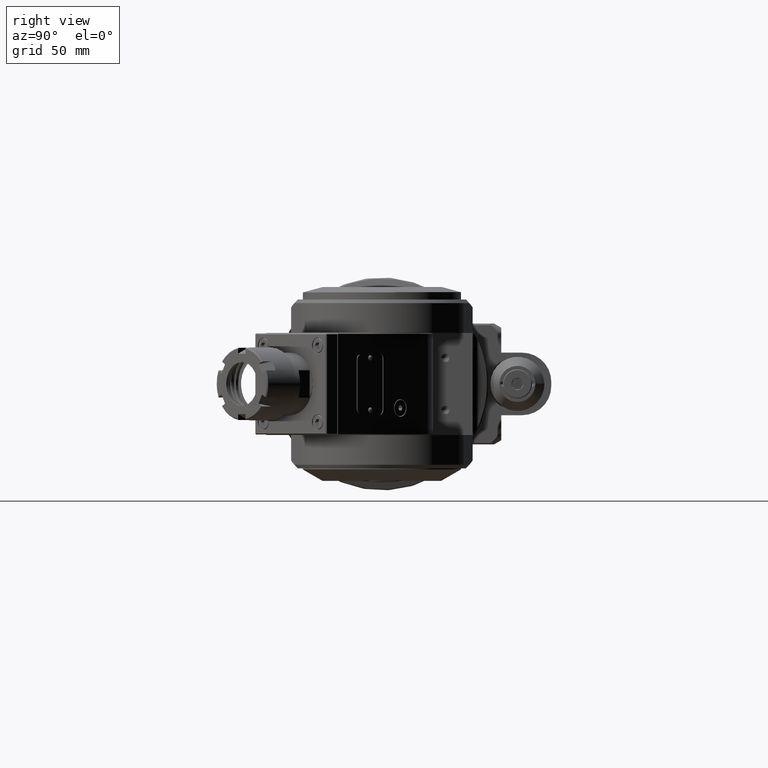
[diagram: clean part render]
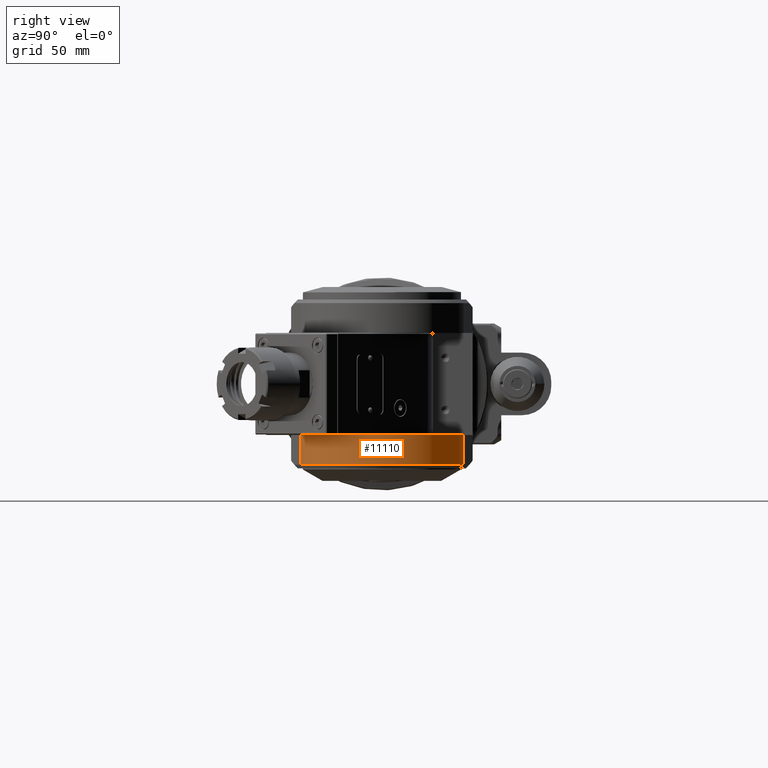
[diagram: same view with one face highlighted and labeled with its STEP entity id]
A machine part, right view. The second image highlights one B-rep face of the part: STEP entity #11110.
In plain terms, the highlighted cylindrical surface (partial cylindrical patch) has radius 40.5 mm, axis along (-0, -0, 1).
Its self-contained STEP definition (entity closure, byte-faithful):
#1300=FACE_OUTER_BOUND('',#2022,.T.);
#2022=EDGE_LOOP('',(#9365,#9366,#9367,#9368));
#2576=CIRCLE('',#12007,40.5);
#2643=CIRCLE('',#12159,40.5);
#3379=LINE('',#48899,#4193);
#3413=LINE('',#49160,#4227);
#4193=VECTOR('',#14398,14.26794919243);
#4227=VECTOR('',#14552,14.26794919243);
#5100=VERTEX_POINT('',#48416);
#5101=VERTEX_POINT('',#48418);
#5230=VERTEX_POINT('',#48896);
#5272=VERTEX_POINT('',#49156);
#6465=EDGE_CURVE('',#5100,#5101,#2576,.T.);
#6634=EDGE_CURVE('',#5100,#5230,#3379,.T.);
#6708=EDGE_CURVE('',#5272,#5230,#2643,.T.);
#6710=EDGE_CURVE('',#5272,#5101,#3413,.T.);
#9365=ORIENTED_EDGE('',*,*,#6708,.F.);
#9366=ORIENTED_EDGE('',*,*,#6710,.T.);
#9367=ORIENTED_EDGE('',*,*,#6465,.F.);
#9368=ORIENTED_EDGE('',*,*,#6634,.T.);
#10654=CYLINDRICAL_SURFACE('',#12160,40.5);
#11110=ADVANCED_FACE('',(#1300),#10654,.T.);
#12007=AXIS2_PLACEMENT_3D('',#48419,#14140,#14141);
#12159=AXIS2_PLACEMENT_3D('',#49157,#14547,#14548);
#12160=AXIS2_PLACEMENT_3D('',#49159,#14550,#14551);
#14140=DIRECTION('center_axis',(0.,1.,0.));
#14141=DIRECTION('ref_axis',(0.258819045102705,0.,0.965925826289019));
#14398=DIRECTION('',(-2.101556645925E-13,-1.,7.220988475335E-14));
#14547=DIRECTION('center_axis',(0.,-1.,0.));
#14548=DIRECTION('ref_axis',(0.258819045102493,0.,-0.965925826289076));
#14550=DIRECTION('center_axis',(0.,1.,0.));
#14551=DIRECTION('ref_axis',(0.,0.,-1.));
#14552=DIRECTION('',(1.902356963847E-13,1.,6.523789588062E-14));
#48416=CARTESIAN_POINT('',(117.4821713267,-24.5,39.1199959647));
#48418=CARTESIAN_POINT('',(117.4821713267,-24.5,-39.11999596471));
#48419=CARTESIAN_POINT('Origin',(107.,-24.5,0.));
#48896=CARTESIAN_POINT('',(117.4821713267,-38.76794919243,39.11999596471));
#48899=CARTESIAN_POINT('',(117.4821713267,-24.5,39.11999596471));
#49156=CARTESIAN_POINT('',(117.4821713267,-38.76794919243,-39.11999596471));
#49157=CARTESIAN_POINT('Origin',(107.,-38.76794919243,0.));
#49159=CARTESIAN_POINT('Origin',(107.,-53.37290530577,0.));
#49160=CARTESIAN_POINT('',(117.4821713267,-38.76794919243,-39.11999596471));